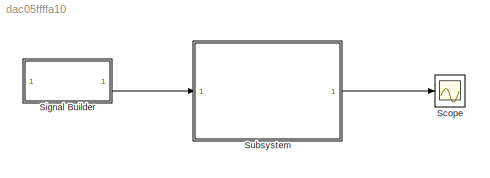
MODEL slx_dac05ffffa10
KIND model
CONFIG AbsTol = auto
CONFIG EnableMultiTasking = off
CONFIG FixedStep = auto
CONFIG MaxStep = auto
CONFIG MinStep = auto
CONFIG RelTol = 1e-3
CONFIG SampleTimeConstraint = Unconstrained
CONFIG SolverName = VariableStepAuto
CONFIG StartTime = 0.0
CONFIG StopTime = 550
BLOCK [Scope] Scope
  Floating = off
  NumInputPorts = 1
  ScopeSpecificationString = Simulink.scopes.TimeScopeBlockCfg('CurrentConfiguration', extmgr.ConfigurationSet(extmgr.Configuration('Core','General UI',true),extmgr.Configuration('Core','Source UI',true),extmgr.Configuration('Sources','WiredSimulink',true),extmgr.Configuration('Visuals','Time Domain',true,'SerializedDisplays',{struct('MinYLimReal','-167.77548','MaxYLimReal','167.84643','YLabelReal','','MinYLimMag',' 0.00000',...<+1416ch>
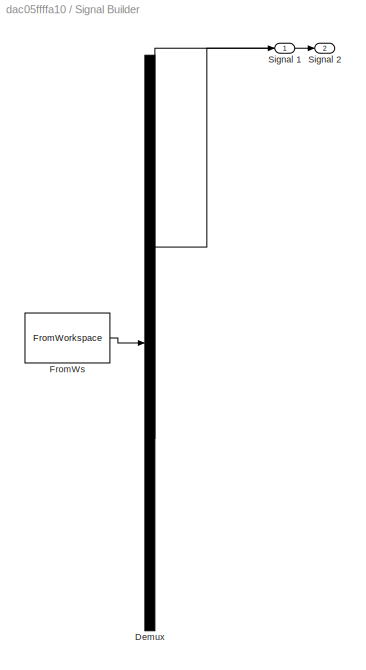
BLOCK [SubSystem] Signal Builder
  ClipboardFcn = sigbuilder_block('clipboard');
  CloseFcn = sigbuilder_block('close');
  ContinueFcn = sigbuilder_block('continue');
  CopyFcn = sigbuilder_block('copy');
  DeleteFcn = sigbuilder_block('delete');
  LoadFcn = sigbuilder_block('load');
  MaskHideContents = on
  ModelCloseFcn = sigbuilder_block('modelClose');
  NameChangeFcn = sigbuilder_block('namechange');
  OpenFcn = sigbuilder_block('open',[251.25 72.75 550.5 417.75 ]);
  PauseFcn = sigbuilder_block('pause');
  PreSaveFcn = sigbuilder_block('preSave');
  StartFcn = sigbuilder_block('start');
  StopFcn = sigbuilder_block('stop');
  Tag = STV Subsys
BLOCK [Demux] Signal Builder/Demux
  DisplayOption = none
  Outputs = 2
  Tag = STV Demux
BLOCK [FromWorkspace] Signal Builder/FromWs
  Tag = STV FromWs
  VariableName = tuvar
BLOCK [Outport] Signal Builder/Signal 1
  Tag = STV Outport
BLOCK [Outport] Signal Builder/Signal 2
  Port = 2
  Tag = STV Outport
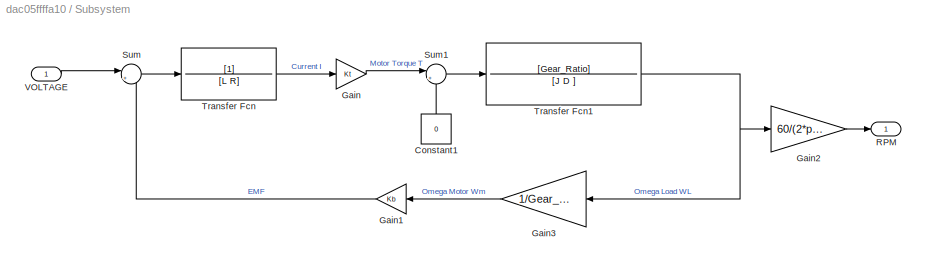
BLOCK [SubSystem] Subsystem
BLOCK [Constant] Subsystem/Constant1
  NameLocation = right
  Value = 0
BLOCK [Gain] Subsystem/Gain
  Gain = Kt
BLOCK [Gain] Subsystem/Gain1
  Gain = Kb
BLOCK [Gain] Subsystem/Gain2
  Gain = 60/(2*pi)
BLOCK [Gain] Subsystem/Gain3
  Gain = 1/Gear_Ratio
BLOCK [Outport] Subsystem/RPM
BLOCK [Sum] Subsystem/Sum
  Inputs = |+-
BLOCK [Sum] Subsystem/Sum1
  Inputs = |+-
BLOCK [TransferFcn] Subsystem/Transfer Fcn
  Denominator = [L R]
BLOCK [TransferFcn] Subsystem/Transfer Fcn1
  Denominator = [J D ]
  Numerator = [Gear_Ratio]
BLOCK [Inport] Subsystem/VOLTAGE
LINE Signal Builder:2 -> Subsystem:1
LINE Subsystem/Constant1:1 -> Subsystem/Sum1:2
LINE Subsystem/Gain1:1 -> Subsystem/Sum:2
LINE Subsystem/Gain2:1 -> Subsystem/RPM:1
LINE Subsystem/Gain3:1 -> Subsystem/Gain1:1
LINE Subsystem/Gain:1 -> Subsystem/Sum1:1
LINE Subsystem/Sum1:1 -> Subsystem/Transfer Fcn1:1
LINE Subsystem/Sum:1 -> Subsystem/Transfer Fcn:1
NET Subsystem/Transfer Fcn1:1 -> Subsystem/Gain2:1, Subsystem/Gain3:1
LINE Subsystem/Transfer Fcn:1 -> Subsystem/Gain:1
LINE Subsystem/VOLTAGE:1 -> Subsystem/Sum:1
LINE Subsystem:1 -> Scope:1
note: NET lines group one-source signal fan-out (src -> all destinations, sorted); 1:1 wires keep LINE
